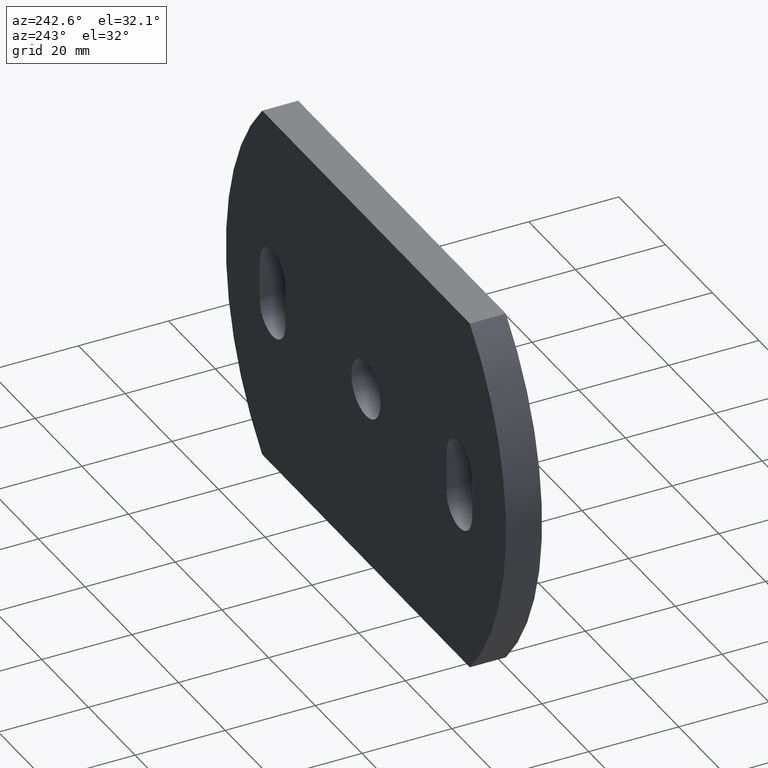
[diagram: clean part render]
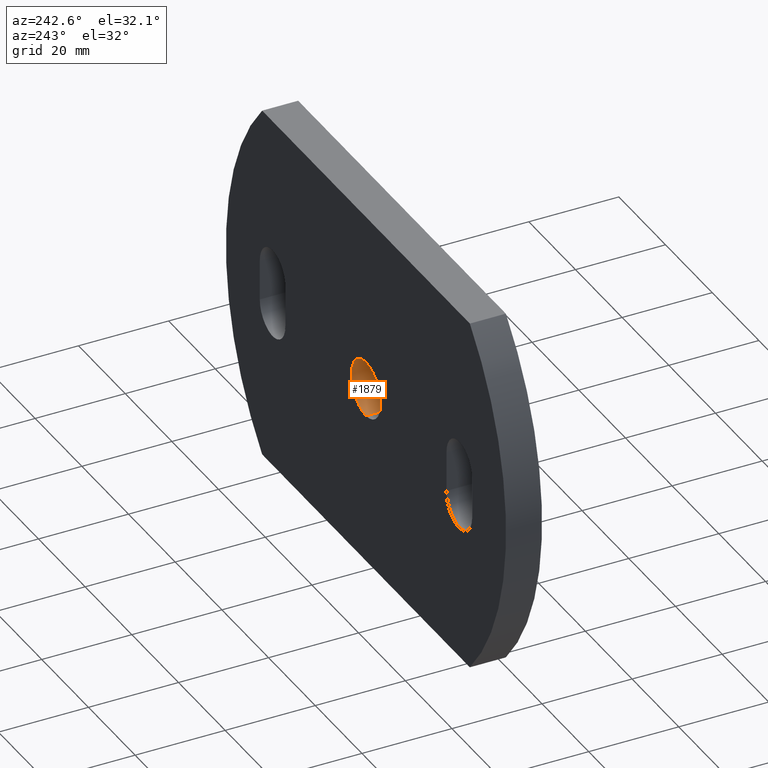
[diagram: same view with one face highlighted and labeled with its STEP entity id]
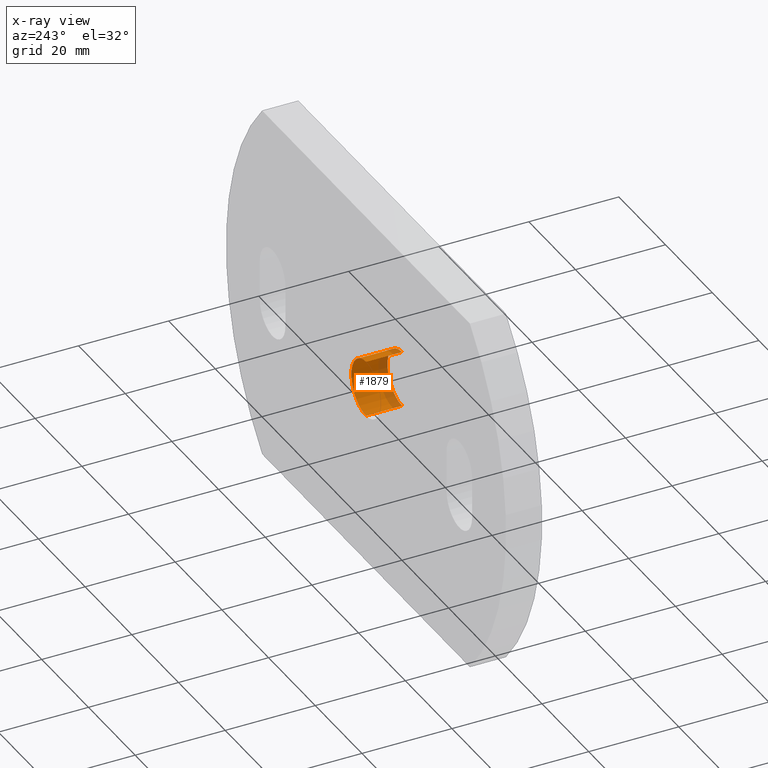
[diagram: x-ray of the same camera — body ghosted, the highlighted face saturated]
A machine part, auxiliary view. The second image highlights one B-rep face of the part: STEP entity #1879.
The next image is the same camera in x-ray: the body ghosted, the highlighted face saturated — about 25% of this face is hidden behind the body in this view.
In plain terms, the highlighted cylindrical surface (edge-blend (fillet) strip) has radius 6.25 mm, axis along (-0, 1, -0).
Its self-contained STEP definition (entity closure, byte-faithful):
#24 = CARTESIAN_POINT ( 'NONE',  ( 0.0000000000000000000, 0.0000000000000000000, 0.0000000000000000000 ) ) ;
#78 = VERTEX_POINT ( 'NONE', #427 ) ;
#226 = AXIS2_PLACEMENT_3D ( 'NONE', #10403, #8609, #1180 ) ;
#291 = EDGE_LOOP ( 'NONE', ( #5093, #1251, #4194, #10794 ) ) ;
#427 = CARTESIAN_POINT ( 'NONE',  ( 0.0000000000000000000, 0.0000000000000000000, 6.250000000000000000 ) ) ;
#518 = DIRECTION ( 'NONE',  ( -0.0000000000000000000, 1.000000000000000000, -0.0000000000000000000 ) ) ;
#661 = EDGE_CURVE ( 'NONE', #78, #8045, #5563, .T. ) ;
#861 = DIRECTION ( 'NONE',  ( -0.0000000000000000000, 1.000000000000000000, -0.0000000000000000000 ) ) ;
#1030 = CARTESIAN_POINT ( 'NONE',  ( 0.0000000000000000000, 0.0000000000000000000, 6.250000000000000000 ) ) ;
#1176 = VECTOR ( 'NONE', #518, 1000.000000000000000 ) ;
#1180 = DIRECTION ( 'NONE',  ( 0.0000000000000000000, 0.0000000000000000000, 1.000000000000000000 ) ) ;
#1251 = ORIENTED_EDGE ( 'NONE', *, *, #661, .F. ) ;
#1257 = EDGE_CURVE ( 'NONE', #7514, #3764, #4391, .T. ) ;
#1336 = AXIS2_PLACEMENT_3D ( 'NONE', #24, #861, #6721 ) ;
#1817 = LINE ( 'NONE', #1030, #1176 ) ;
#1824 = CARTESIAN_POINT ( 'NONE',  ( 0.0000000000000000000, 0.0000000000000000000, 0.0000000000000000000 ) ) ;
#1879 = ADVANCED_FACE ( 'NONE', ( #2118 ), #6320, .F. ) ;
#2118 = FACE_OUTER_BOUND ( 'NONE', #291, .T. ) ;
#3764 = VERTEX_POINT ( 'NONE', #9494 ) ;
#4194 = ORIENTED_EDGE ( 'NONE', *, *, #5828, .T. ) ;
#4391 = CIRCLE ( 'NONE', #226, 6.250000000000000000 ) ;
#5093 = ORIENTED_EDGE ( 'NONE', *, *, #10484, .F. ) ;
#5563 = CIRCLE ( 'NONE', #7934, 6.250000000000000000 ) ;
#5828 = EDGE_CURVE ( 'NONE', #78, #7514, #1817, .T. ) ;
#6320 = CYLINDRICAL_SURFACE ( 'NONE', #1336, 6.250000000000000000 ) ;
#6721 = DIRECTION ( 'NONE',  ( 0.0000000000000000000, 0.0000000000000000000, 1.000000000000000000 ) ) ;
#6903 = DIRECTION ( 'NONE',  ( -0.0000000000000000000, 1.000000000000000000, -0.0000000000000000000 ) ) ;
#7514 = VERTEX_POINT ( 'NONE', #10589 ) ;
#7934 = AXIS2_PLACEMENT_3D ( 'NONE', #1824, #10241, #8603 ) ;
#8045 = VERTEX_POINT ( 'NONE', #8659 ) ;
#8450 = LINE ( 'NONE', #8553, #9526 ) ;
#8553 = CARTESIAN_POINT ( 'NONE',  ( 7.654042494670957600E-016, 0.0000000000000000000, -6.250000000000000000 ) ) ;
#8603 = DIRECTION ( 'NONE',  ( 0.0000000000000000000, 0.0000000000000000000, 1.000000000000000000 ) ) ;
#8609 = DIRECTION ( 'NONE',  ( 0.0000000000000000000, 1.000000000000000000, 0.0000000000000000000 ) ) ;
#8659 = CARTESIAN_POINT ( 'NONE',  ( 7.654042494670957600E-016, 0.0000000000000000000, -6.250000000000000000 ) ) ;
#9494 = CARTESIAN_POINT ( 'NONE',  ( 7.654042494670957600E-016, 8.000000000000000000, -6.250000000000000000 ) ) ;
#9526 = VECTOR ( 'NONE', #6903, 1000.000000000000000 ) ;
#10241 = DIRECTION ( 'NONE',  ( 0.0000000000000000000, 1.000000000000000000, 0.0000000000000000000 ) ) ;
#10403 = CARTESIAN_POINT ( 'NONE',  ( 0.0000000000000000000, 8.000000000000000000, 0.0000000000000000000 ) ) ;
#10484 = EDGE_CURVE ( 'NONE', #8045, #3764, #8450, .T. ) ;
#10589 = CARTESIAN_POINT ( 'NONE',  ( 0.0000000000000000000, 8.000000000000000000, 6.250000000000000000 ) ) ;
#10794 = ORIENTED_EDGE ( 'NONE', *, *, #1257, .T. ) ;